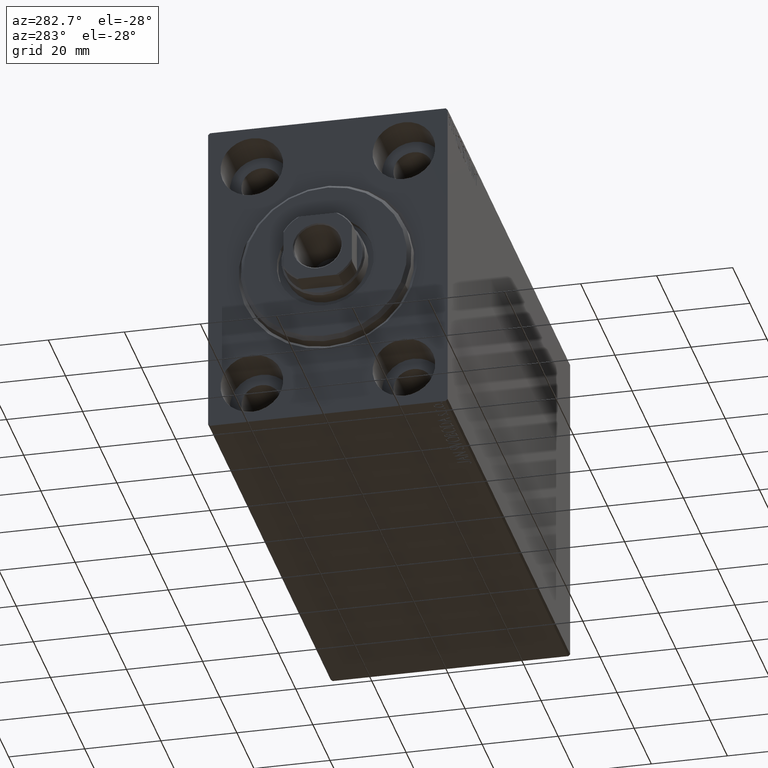
[diagram: clean part render]
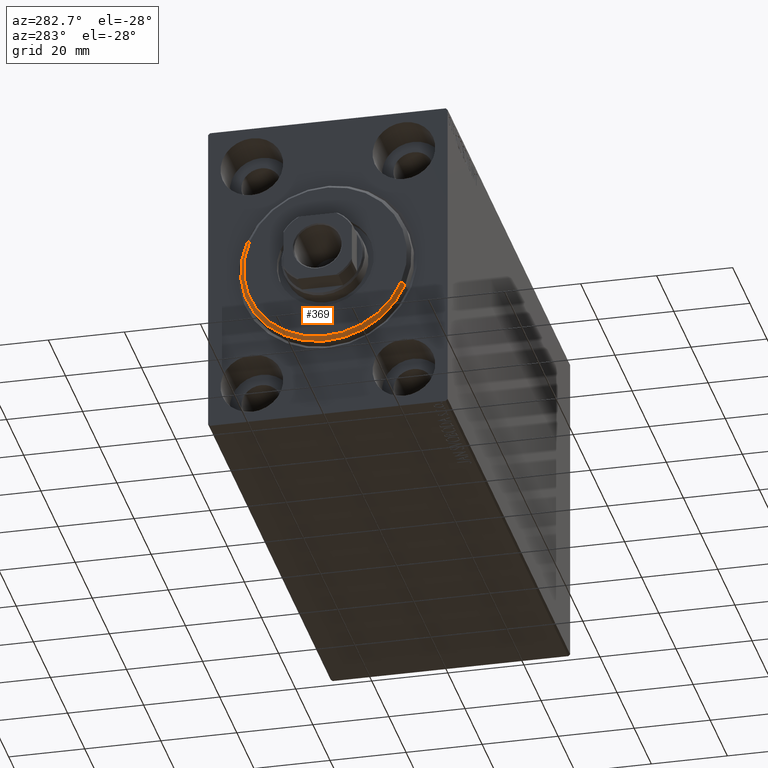
[diagram: same view with one face highlighted and labeled with its STEP entity id]
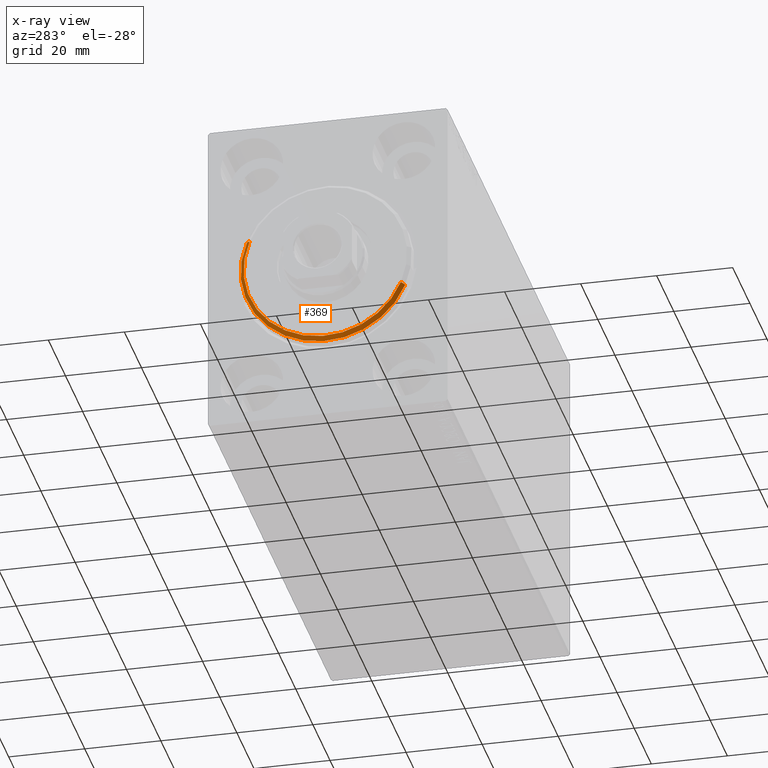
[diagram: x-ray of the same camera — body ghosted, the highlighted face saturated]
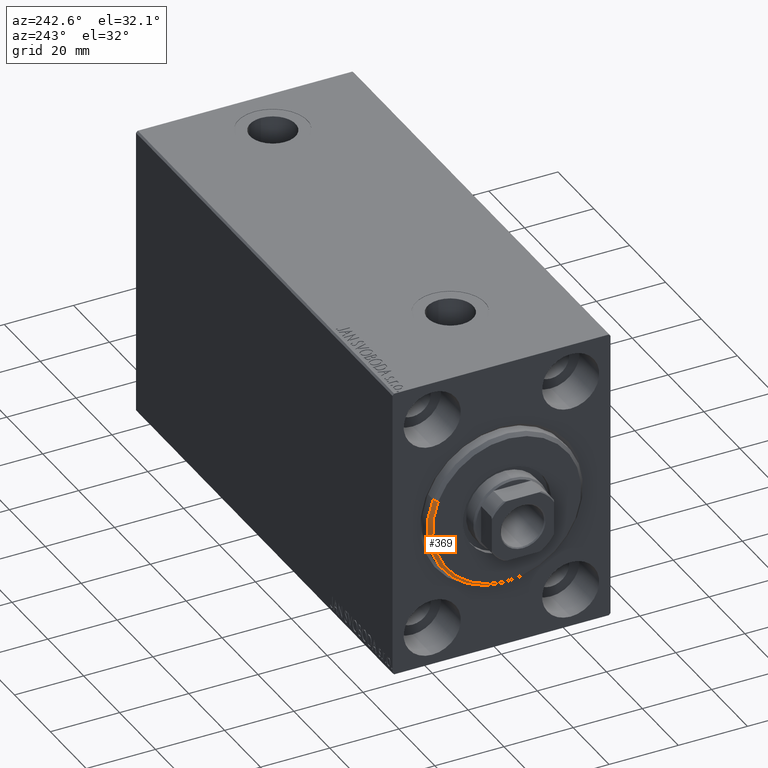
[diagram: same view with one face highlighted and labeled with its STEP entity id]
A machine part, auxiliary view. The second image highlights one B-rep face of the part: STEP entity #369.
The next image is the same camera in x-ray: the body ghosted, the highlighted face saturated — about 0% of this face is hidden behind the body in this view.
A second angle (auxiliary view) of the same face is appended — the face is thin or edge-on in the first view.
In plain terms, the highlighted conical surface has half-angle 45 deg.
Its self-contained STEP definition (entity closure, byte-faithful):
#369 = ADVANCED_FACE ( 'NONE', ( #40269 ), #24160, .T. ) ;
#796 = ORIENTED_EDGE ( 'NONE', *, *, #26906, .T. ) ;
#1012 = CIRCLE ( 'NONE', #8861, 21.50000000000000355 ) ;
#5671 = VERTEX_POINT ( 'NONE', #12527 ) ;
#8861 = AXIS2_PLACEMENT_3D ( 'NONE', #44014, #40890, #40672 ) ;
#9104 = ORIENTED_EDGE ( 'NONE', *, *, #35405, .F. ) ;
#10204 = LINE ( 'NONE', #37316, #30748 ) ;
#12527 = CARTESIAN_POINT ( 'NONE',  ( 3.000000000000000000, 2.694222958124177598E-15, -21.50000000000000355 ) ) ;
#12874 = VERTEX_POINT ( 'NONE', #18386 ) ;
#16597 = LINE ( 'NONE', #30141, #34257 ) ;
#16806 = VERTEX_POINT ( 'NONE', #17078 ) ;
#17078 = CARTESIAN_POINT ( 'NONE',  ( 1.999999999999999112, 2.755455298081545172E-15, -22.50000000000000355 ) ) ;
#17278 = ORIENTED_EDGE ( 'NONE', *, *, #19292, .F. ) ;
#17816 = AXIS2_PLACEMENT_3D ( 'NONE', #24284, #38713, #31158 ) ;
#18386 = CARTESIAN_POINT ( 'NONE',  ( 3.000000000000000000, 0.000000000000000000, 21.50000000000000355 ) ) ;
#18546 = VERTEX_POINT ( 'NONE', #42669 ) ;
#19292 = EDGE_CURVE ( 'NONE', #18546, #16806, #21346, .T. ) ;
#19708 = DIRECTION ( 'NONE',  ( -0.7071067811865487940, 0.000000000000000000, 0.7071067811865463515 ) ) ;
#21346 = CIRCLE ( 'NONE', #17816, 22.50000000000000355 ) ;
#24160 = CONICAL_SURFACE ( 'NONE', #37642, 21.50000000000000355, 0.7853981633974466137 ) ;
#24284 = CARTESIAN_POINT ( 'NONE',  ( 1.999999999999999112, 0.000000000000000000, 0.000000000000000000 ) ) ;
#24523 = EDGE_CURVE ( 'NONE', #12874, #18546, #16597, .T. ) ;
#26278 = DIRECTION ( 'NONE',  ( -1.000000000000000000, 0.000000000000000000, 0.000000000000000000 ) ) ;
#26906 = EDGE_CURVE ( 'NONE', #5671, #16806, #10204, .T. ) ;
#30141 = CARTESIAN_POINT ( 'NONE',  ( 3.000000000000000000, 0.000000000000000000, 21.50000000000000355 ) ) ;
#30748 = VECTOR ( 'NONE', #37528, 1000.000000000000000 ) ;
#31158 = DIRECTION ( 'NONE',  ( 0.000000000000000000, 0.000000000000000000, -1.000000000000000000 ) ) ;
#33586 = DIRECTION ( 'NONE',  ( 0.000000000000000000, 0.000000000000000000, 1.000000000000000000 ) ) ;
#34018 = CARTESIAN_POINT ( 'NONE',  ( 3.000000000000000000, 0.000000000000000000, 0.000000000000000000 ) ) ;
#34257 = VECTOR ( 'NONE', #19708, 1000.000000000000000 ) ;
#34782 = EDGE_LOOP ( 'NONE', ( #9104, #796, #17278, #43236 ) ) ;
#35405 = EDGE_CURVE ( 'NONE', #5671, #12874, #1012, .T. ) ;
#37316 = CARTESIAN_POINT ( 'NONE',  ( 3.000000000000000000, 2.632990618166810024E-15, -21.50000000000000355 ) ) ;
#37528 = DIRECTION ( 'NONE',  ( -0.7071067811865487940, 8.659560562354919300E-17, -0.7071067811865463515 ) ) ;
#37642 = AXIS2_PLACEMENT_3D ( 'NONE', #34018, #26278, #33586 ) ;
#38713 = DIRECTION ( 'NONE',  ( -1.000000000000000000, 0.000000000000000000, 0.000000000000000000 ) ) ;
#40269 = FACE_OUTER_BOUND ( 'NONE', #34782, .T. ) ;
#40672 = DIRECTION ( 'NONE',  ( 0.000000000000000000, 0.000000000000000000, -1.000000000000000000 ) ) ;
#40890 = DIRECTION ( 'NONE',  ( 1.000000000000000000, -0.000000000000000000, 0.000000000000000000 ) ) ;
#42669 = CARTESIAN_POINT ( 'NONE',  ( 1.999999999999999112, 0.000000000000000000, 22.50000000000000355 ) ) ;
#43236 = ORIENTED_EDGE ( 'NONE', *, *, #24523, .F. ) ;
#44014 = CARTESIAN_POINT ( 'NONE',  ( 3.000000000000000000, 0.000000000000000000, 0.000000000000000000 ) ) ;